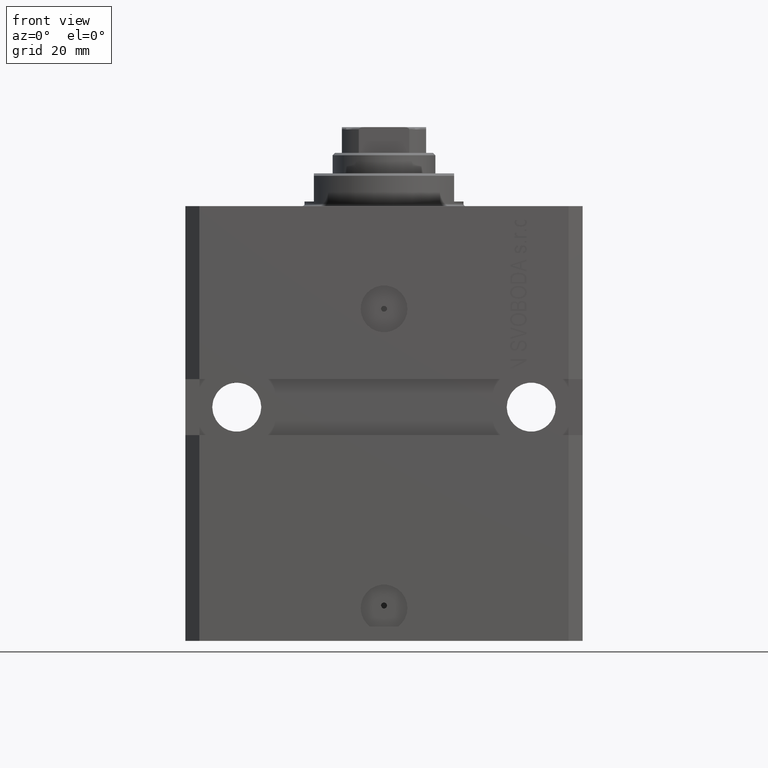
[diagram: clean part render]
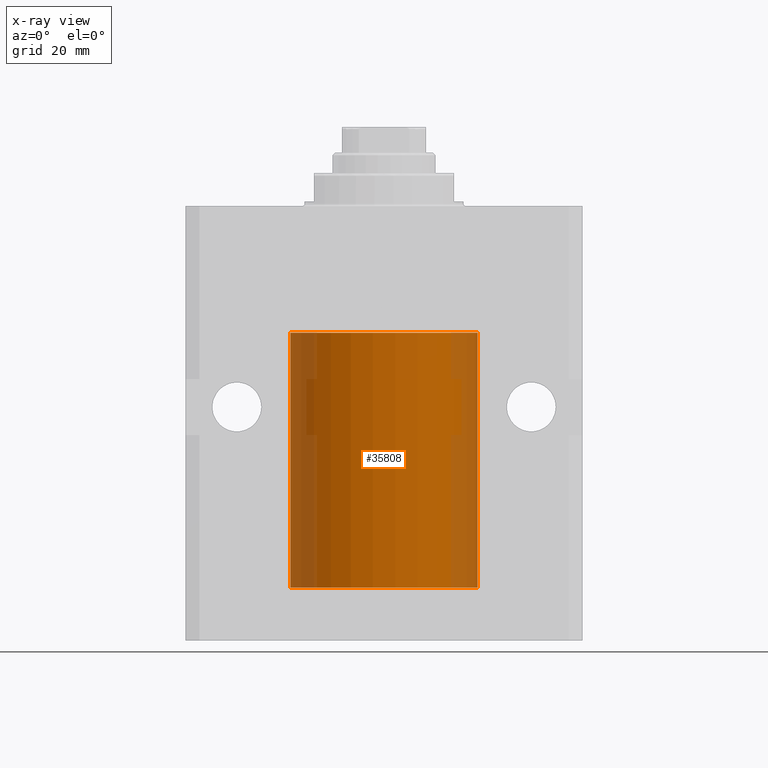
[diagram: x-ray — body ghosted, one internal face saturated and labeled with its STEP entity id]
A machine part, front view, then the same camera in x-ray: the body is ghosted and one INTERNAL B-rep face — a face not visible from any outside direction — is saturated and labeled: STEP entity #35808.
In plain terms, the highlighted cylindrical surface (partial cylindrical patch) has radius 20 mm, axis along (0, 0, 1).
Its self-contained STEP definition (entity closure, byte-faithful):
#2514 = CARTESIAN_POINT ( 'NONE',  ( -20.00000000000010303, 3.580159286679549072E-13, -79.62500000000332534 ) ) ;
#2592 = CARTESIAN_POINT ( 'NONE',  ( -19.99255948581289033, -0.5575529953197770894, -78.67383335671266309 ) ) ;
#3775 = CARTESIAN_POINT ( 'NONE',  ( -20.00000000000000000, -0.1651542110816439091, -78.37500000000001421 ) ) ;
#5961 = DIRECTION ( 'NONE',  ( 1.000000000000000000, 0.000000000000000000, 0.000000000000000000 ) ) ;
#6124 = VERTEX_POINT ( 'NONE', #28643 ) ;
#6209 = CARTESIAN_POINT ( 'NONE',  ( -19.99257639367449357, -0.5569510432580352388, -79.32709448625169557 ) ) ;
#6805 = CARTESIAN_POINT ( 'NONE',  ( -20.00000000000000000, 2.449293598294706513E-15, -81.60000000000000853 ) ) ;
#7086 = EDGE_CURVE ( 'NONE', #23856, #29464, #14970, .T. ) ;
#8548 = LINE ( 'NONE', #29738, #35730 ) ;
#9355 = AXIS2_PLACEMENT_3D ( 'NONE', #16541, #42763, #5961 ) ;
#9652 = ORIENTED_EDGE ( 'NONE', *, *, #7086, .T. ) ;
#10881 = DIRECTION ( 'NONE',  ( -0.000000000000000000, -0.000000000000000000, 1.000000000000000000 ) ) ;
#12285 = DIRECTION ( 'NONE',  ( -0.000000000000000000, -0.000000000000000000, 1.000000000000000000 ) ) ;
#13182 = CARTESIAN_POINT ( 'NONE',  ( -19.99767054355995555, -0.3263099029014857599, -79.55741108240768256 ) ) ;
#13372 = CARTESIAN_POINT ( 'NONE',  ( -20.00000000000000000, -1.124177324826063808E-14, -78.37500000000000000 ) ) ;
#13566 = CARTESIAN_POINT ( 'NONE',  ( 20.00000000000000000, 0.000000000000000000, -81.60000000000000853 ) ) ;
#13622 = ORIENTED_EDGE ( 'NONE', *, *, #42026, .T. ) ;
#14970 = LINE ( 'NONE', #6805, #15855 ) ;
#15181 = AXIS2_PLACEMENT_3D ( 'NONE', #31485, #35328, #24491 ) ;
#15855 = VECTOR ( 'NONE', #10881, 1000.000000000000000 ) ;
#16237 = ORIENTED_EDGE ( 'NONE', *, *, #42842, .T. ) ;
#16541 = CARTESIAN_POINT ( 'NONE',  ( 0.000000000000000000, 0.000000000000000000, -81.60000000000000853 ) ) ;
#18441 = CARTESIAN_POINT ( 'NONE',  ( -20.00000000000000000, -1.124177324826063808E-14, -78.37500000000000000 ) ) ;
#18817 = VERTEX_POINT ( 'NONE', #27527 ) ;
#20539 = EDGE_LOOP ( 'NONE', ( #25528, #9652, #41280, #13622, #16237, #40779 ) ) ;
#20877 = CARTESIAN_POINT ( 'NONE',  ( -19.99765984516762174, -0.3269569594424049930, -78.44291008943298493 ) ) ;
#21483 = B_SPLINE_CURVE_WITH_KNOTS ( 'NONE', 3,
 ( #35099, #46154, #13182, #6209, #42537, #38939, #2592, #20877, #3775, #18441 ),
 .UNSPECIFIED., .F., .F.,
 ( 4, 2, 2, 2, 4 ),
 ( 0.001954154509844221576, 0.002442582466643782209, 0.002931010423443342408, 0.003419438380242903041, 0.003907866337042463674 ),
 .UNSPECIFIED. ) ;
#21721 = VERTEX_POINT ( 'NONE', #13372 ) ;
#22838 = VECTOR ( 'NONE', #28897, 1000.000000000000000 ) ;
#22992 = DIRECTION ( 'NONE',  ( -0.000000000000000000, -0.000000000000000000, 1.000000000000000000 ) ) ;
#23856 = VERTEX_POINT ( 'NONE', #42184 ) ;
#24491 = DIRECTION ( 'NONE',  ( 1.000000000000000000, 0.000000000000000000, 0.000000000000000000 ) ) ;
#25528 = ORIENTED_EDGE ( 'NONE', *, *, #26547, .F. ) ;
#26547 = EDGE_CURVE ( 'NONE', #23856, #39353, #45493, .T. ) ;
#27527 = CARTESIAN_POINT ( 'NONE',  ( 20.00000000000000000, 0.000000000000000000, -27.10000000000000142 ) ) ;
#28643 = CARTESIAN_POINT ( 'NONE',  ( -20.00000000000000000, 2.449293598294706513E-15, -27.10000000000000142 ) ) ;
#28897 = DIRECTION ( 'NONE',  ( -0.000000000000000000, -0.000000000000000000, 1.000000000000000000 ) ) ;
#29464 = VERTEX_POINT ( 'NONE', #2514 ) ;
#29644 = AXIS2_PLACEMENT_3D ( 'NONE', #46195, #12285, #34201 ) ;
#29738 = CARTESIAN_POINT ( 'NONE',  ( 20.00000000000000000, 0.000000000000000000, -81.60000000000000853 ) ) ;
#31485 = CARTESIAN_POINT ( 'NONE',  ( 0.000000000000000000, 0.000000000000000000, -27.10000000000000142 ) ) ;
#34065 = EDGE_CURVE ( 'NONE', #39353, #18817, #8548, .T. ) ;
#34201 = DIRECTION ( 'NONE',  ( 1.000000000000000000, 0.000000000000000000, 0.000000000000000000 ) ) ;
#35099 = CARTESIAN_POINT ( 'NONE',  ( -20.00000000000010303, 3.580159286679549072E-13, -79.62500000000332534 ) ) ;
#35328 = DIRECTION ( 'NONE',  ( 0.000000000000000000, 0.000000000000000000, 1.000000000000000000 ) ) ;
#35730 = VECTOR ( 'NONE', #22992, 1000.000000000000000 ) ;
#35808 = ADVANCED_FACE ( 'NONE', ( #38279 ), #45255, .F. ) ;
#38279 = FACE_OUTER_BOUND ( 'NONE', #20539, .T. ) ;
#38939 = CARTESIAN_POINT ( 'NONE',  ( -19.99022768983530440, -0.6251375268966040677, -78.83566303088220195 ) ) ;
#39353 = VERTEX_POINT ( 'NONE', #13566 ) ;
#39776 = CIRCLE ( 'NONE', #15181, 20.00000000000000000 ) ;
#40779 = ORIENTED_EDGE ( 'NONE', *, *, #34065, .F. ) ;
#41280 = ORIENTED_EDGE ( 'NONE', *, *, #43862, .T. ) ;
#42026 = EDGE_CURVE ( 'NONE', #21721, #6124, #46469, .T. ) ;
#42184 = CARTESIAN_POINT ( 'NONE',  ( -20.00000000000000000, 2.449293598294706513E-15, -81.60000000000000853 ) ) ;
#42537 = CARTESIAN_POINT ( 'NONE',  ( -19.99023630310506761, -0.6248620367829604838, -79.16538138329534036 ) ) ;
#42763 = DIRECTION ( 'NONE',  ( 0.000000000000000000, 0.000000000000000000, 1.000000000000000000 ) ) ;
#42842 = EDGE_CURVE ( 'NONE', #6124, #18817, #39776, .T. ) ;
#43100 = CARTESIAN_POINT ( 'NONE',  ( -20.00000000000000000, 2.449293598294706513E-15, -81.60000000000000853 ) ) ;
#43862 = EDGE_CURVE ( 'NONE', #29464, #21721, #21483, .T. ) ;
#45255 = CYLINDRICAL_SURFACE ( 'NONE', #29644, 20.00000000000000000 ) ;
#45493 = CIRCLE ( 'NONE', #9355, 20.00000000000000000 ) ;
#46154 = CARTESIAN_POINT ( 'NONE',  ( -20.00000000000000355, -0.1631318982819177366, -79.62500000000015632 ) ) ;
#46195 = CARTESIAN_POINT ( 'NONE',  ( 0.000000000000000000, 0.000000000000000000, -81.60000000000000853 ) ) ;
#46469 = LINE ( 'NONE', #43100, #22838 ) ;